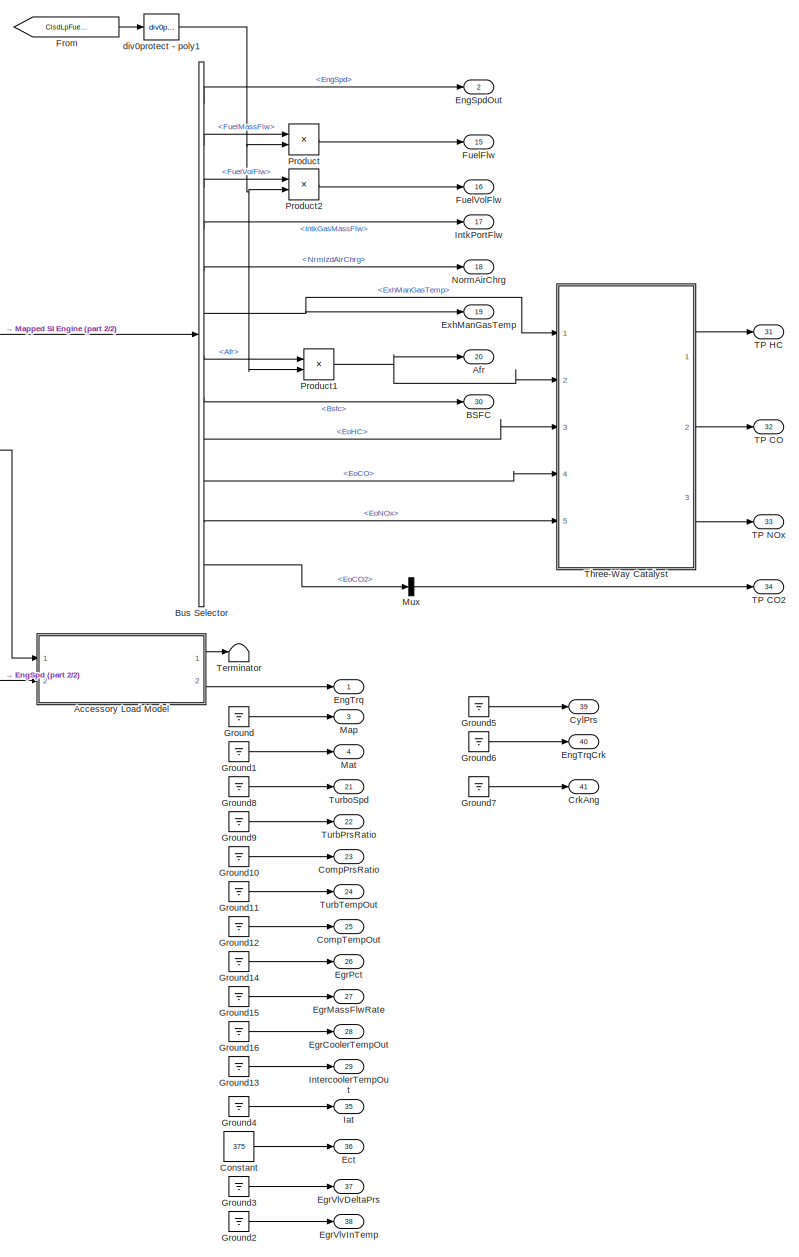
[diagram: root canvas - part 1/2, right side, full height]
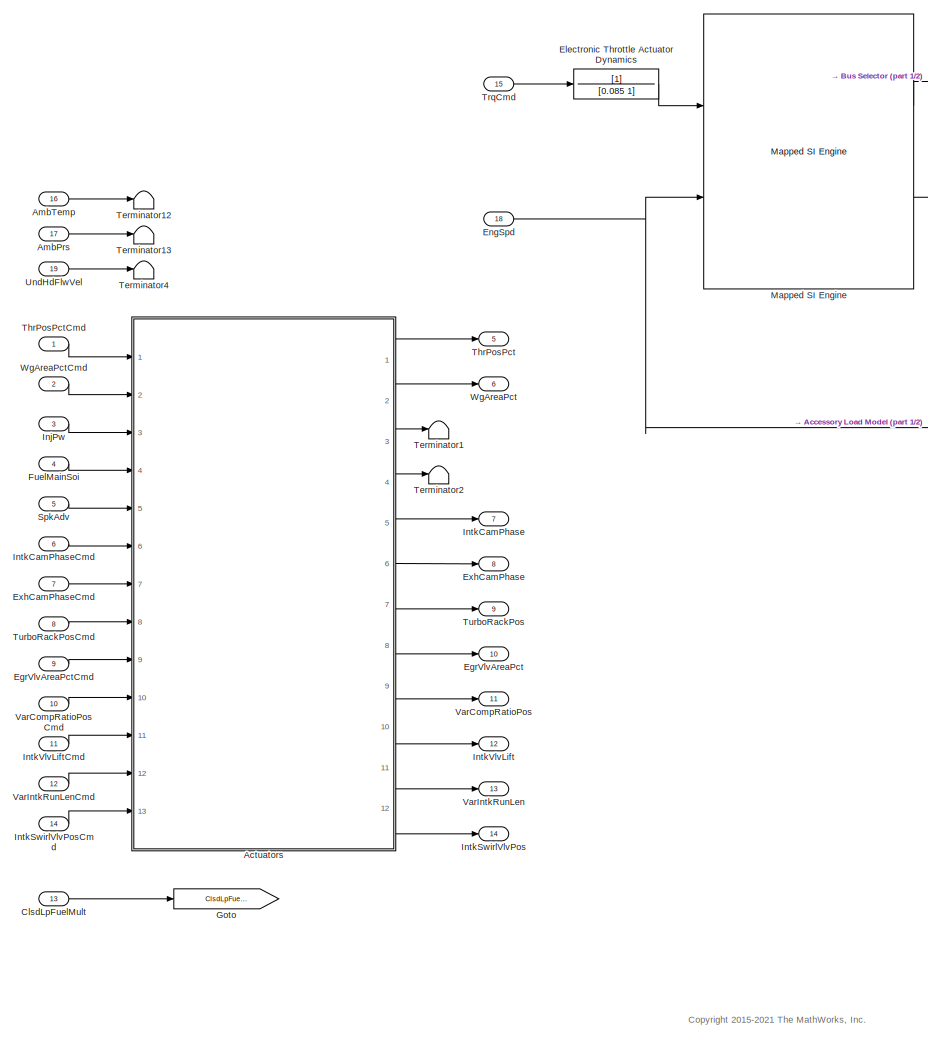
[diagram: root canvas - part 2/2, left side, full height]
MODEL slx_b3dbad4798a2
KIND model
CONFIG AbsTol = auto
CONFIG EnableMultiTasking = on
CONFIG MaxStep = auto
CONFIG MinStep = auto
CONFIG RelTol = 1e-3
CONFIG SampleTimeConstraint = Unconstrained
CONFIG SolverName = VariableStepAuto
CONFIG StartTime = 0.0
CONFIG StopTime = inf
WORKSPACE source: mxarray member
WORKSPACE AccPwrbp = [0 0]
WORKSPACE AccSpdbp = [300 750]
WORKSPACE AfrStoich = 14.6
WORKSPACE Cps = 2
WORKSPACE NCyl = 6
WORKSPACE Pstd = 101325
WORKSPACE Rair = 287
WORKSPACE TimeCnstECP = 0.125
WORKSPACE TimeCnstEGR = 0.125
WORKSPACE TimeCnstETC = 0.085
WORKSPACE TimeCnstICP = 0.125
WORKSPACE TimeCnstIVL = 0.125
WORKSPACE TimeCnstMFA = 0.125
WORKSPACE TimeCnstSWVA = 0.125
WORKSPACE TimeCnstVCR = 0.125
WORKSPACE TimeCnstVGT = 0.15
WORKSPACE TimeCnstVIRL = 0.125
WORKSPACE TimeCnstWGA = 0.15
WORKSPACE Tstd = 293.15
WORKSPACE Vd = 0.0015
WORKSPACE f_air = [0 0 0 0 0 0 0 0 0 0 0 0 ... (256 elements, 16x16)]
WORKSPACE f_air_3d = [0 0 0 0 0 0 0 0 0 0 0 0 ... (768 elements, 16x16x3)]
WORKSPACE f_co = [0 0 0 0 0 0 0 0 0 0 0 0 ... (256 elements, 16x16)]
WORKSPACE f_co2 = [0 0 0 0 0 0 0 0 0 0 0 0 ... (256 elements, 16x16)]
WORKSPACE f_co2_3d = [0 0 0 0 0 0 0 0 0 0 0 0 ... (768 elements, 16x16x3)]
WORKSPACE f_co_3d = [0 0 0 0 0 0 0 0 0 0 0 0 ... (768 elements, 16x16x3)]
WORKSPACE f_eff = [0 500 500 500 500 500 500 500 500 500 500 500 ... (256 elements, 16x16)]
WORKSPACE f_eff_3d = [0 525 525 525 525 525 525 525 525 525 525 525 ... (768 elements, 16x16x3)]
WORKSPACE f_fuel = [0 0 0 0 0 0 0 0 0 0 0 0 ... (256 elements, 16x16)]
WORKSPACE f_fuel_3d = [0 0 0 0 0 0 0 0 0 0 0 0 ... (768 elements, 16x16x3)]
WORKSPACE f_hc = [0 0 0 0 0 0 0 0 0 0 0 0 ... (256 elements, 16x16)]
WORKSPACE f_hc_3d = [0 0 0 0 0 0 0 0 0 0 0 0 ... (768 elements, 16x16x3)]
WORKSPACE f_nox = [0 0 0 0 0 0 0 0 0 0 0 0 ... (256 elements, 16x16)]
WORKSPACE f_nox_3d = [0 0 0 0 0 0 0 0 0 0 0 0 ... (768 elements, 16x16x3)]
WORKSPACE f_pm = [0 0 0 0 0 0 0 0 0 0 0 0 ... (256 elements, 16x16)]
WORKSPACE f_pm_3d = [0 0 0 0 0 0 0 0 0 0 0 0 ... (768 elements, 16x16x3)]
WORKSPACE f_tbrake = [0 15 15 15 15 15 15 15 15 15 15 15 ... (256 elements, 16x16)]
WORKSPACE f_tbrake_3d = [0 14.25 14.25 14.25 14.25 14.25 14.25 14.25 14.25 14.25 14.25 14.25 ... (768 elements, 16x16x3)]
WORKSPACE f_tbrake_engtmp_bpt = [233.15 273.15 373.15]
WORKSPACE f_tbrake_n_bpt = [0 750 1053.57142857 1357.14285714 1660.71428571 1964.28571429 2267.85714286 2571.42857143 2875 3178.57142857 3482.14285714 3785.71428571 ... (16 elements, 1x16)]
WORKSPACE f_tbrake_t_bpt = [0 15 26.4285714286 37.8571428571 49.2857142857 60.7142857143 72.1428571429 83.5714285714 95 106.428571429 117.857142857 129.285714286 ... (16 elements, 1x16)]
WORKSPACE f_texh = [730.342454347 730.70312412 730.70312412 730.70312412 730.70312412 730.70312412 730.70312412 730.70312412 730.70312412 730.70312412 730.70312412 730.70312412 ... (256 elements, 16x16)]
WORKSPACE f_texh_3d = [693.825331629 694.167967914 694.167967914 694.167967914 694.167967914 694.167967914 694.167967914 694.167967914 694.167967914 694.167967914 694.167967914 694.167967914 ... (768 elements, 16x16x3)]
WORKSPACE f_twc_eff_co = [0.17 0.25 0.45 0.99 0.99 0.99 0.99]
WORKSPACE f_twc_eff_hc = [0.21 0.375 0.75 0.98 0.98 0.98 0.98]
WORKSPACE f_twc_eff_lam = [0.909090909 0.944055944 0.979020979 1 1.013986014 1.048951049 1.083916084]
WORKSPACE f_twc_eff_nox = [0.98 0.98 0.98 0.97 0.05 0.02 0]
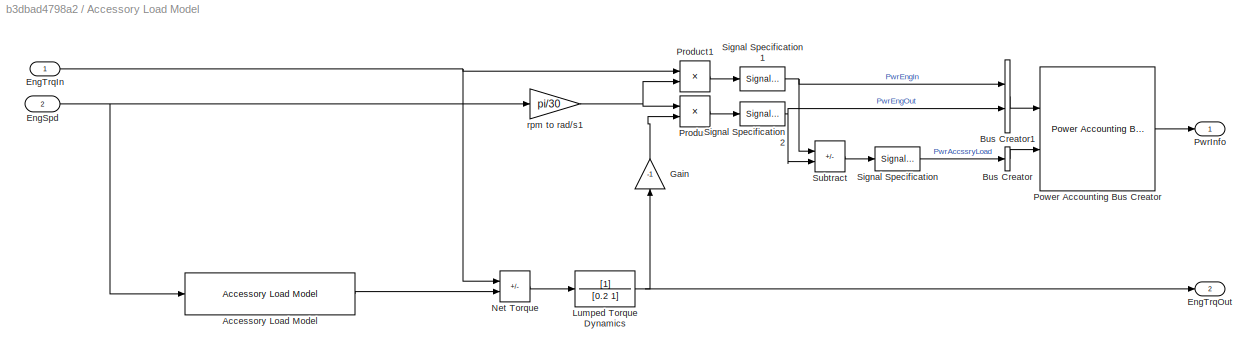
BLOCK [SubSystem] Accessory Load Model
  Ports = [2, 2]
  RequestExecContextInheritance = off
BLOCK [Reference] Accessory Load Model/Accessory Load Model  REF=autolibhevctrlrcommon/Accessory Load Model
  Ports = [1, 1]
  SourceBlock = autolibhevctrlrcommon/Accessory Load Model
  SourceProductBaseCode = PW
BLOCK [BusCreator] Accessory Load Model/Bus Creator
  DisplayOption = bar
  InheritFromInputs = on
  Inputs = 1
  Ports = [1, 1]
BLOCK [BusCreator] Accessory Load Model/Bus Creator1
  DisplayOption = bar
  InheritFromInputs = on
  Inputs = 2
  Ports = [2, 1]
BLOCK [Inport] Accessory Load Model/EngSpd
  Port = 2
BLOCK [Inport] Accessory Load Model/EngTrqIn
BLOCK [Outport] Accessory Load Model/EngTrqOut
  Port = 2
  Unit = N*m
  VectorParamsAs1DForOutWhenUnconnected = off
BLOCK [Gain] Accessory Load Model/Gain
  Gain = -1
  NameLocation = right
BLOCK [TransferFcn] Accessory Load Model/Lumped Torque Dynamics
  Denominator = [0.2 1]
BLOCK [Sum] Accessory Load Model/Net Torque
  IconShape = rectangular
  Inputs = +-
  Ports = [2, 1]
BLOCK [Reference] Accessory Load Model/Power Accounting Bus Creator  REF=autolibpowerinfoutils/Power Accounting Bus Creator
  Ports = [2, 1]
  SourceBlock = autolibpowerinfoutils/Power Accounting Bus Creator
  SourceProductBaseCode = PW,DR,MT,UV,VE
  SourceType = Power Accounting Bus Creator
BLOCK [Product] Accessory Load Model/Product
  Ports = [2, 1]
BLOCK [Product] Accessory Load Model/Product1
  Ports = [2, 1]
BLOCK [Outport] Accessory Load Model/PwrInfo
  VectorParamsAs1DForOutWhenUnconnected = off
BLOCK [SignalSpecification] Accessory Load Model/Signal Specification
  Unit = W
BLOCK [SignalSpecification] Accessory Load Model/Signal Specification1
  Unit = W
BLOCK [SignalSpecification] Accessory Load Model/Signal Specification2
  Unit = W
BLOCK [Sum] Accessory Load Model/Subtract
  IconShape = rectangular
  Inputs = --
  Ports = [2, 1]
BLOCK [Gain] Accessory Load Model/rpm to rad//s1
  Gain = pi/30
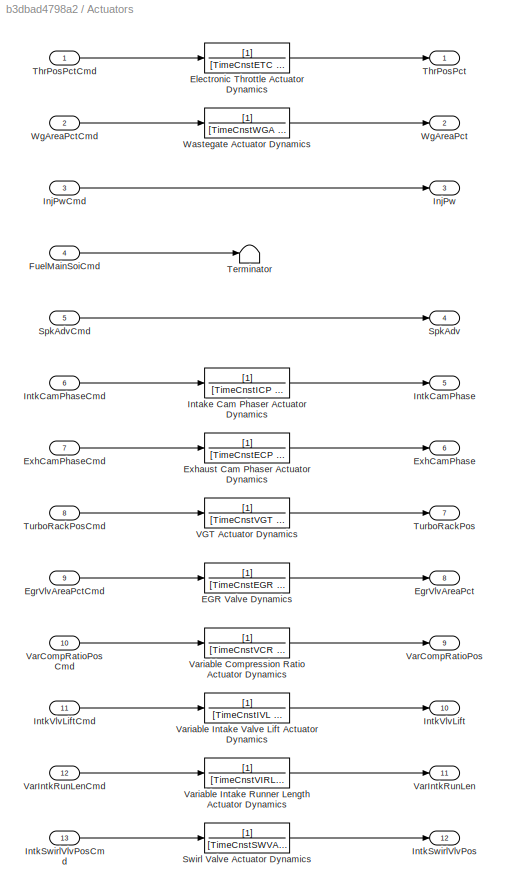
BLOCK [SubSystem] Actuators
  Ports = [13, 12]
  RequestExecContextInheritance = off
BLOCK [TransferFcn] Actuators/EGR Valve Dynamics
  Denominator = [TimeCnstEGR 1]
BLOCK [Outport] Actuators/EgrVlvAreaPct
  Port = 8
  Unit = %
  VectorParamsAs1DForOutWhenUnconnected = off
BLOCK [Inport] Actuators/EgrVlvAreaPctCmd
  Port = 9
  Unit = %
BLOCK [TransferFcn] Actuators/Electronic Throttle Actuator Dynamics
  Denominator = [TimeCnstETC 1]
BLOCK [Outport] Actuators/ExhCamPhase
  Port = 6
  Unit = deg
  VectorParamsAs1DForOutWhenUnconnected = off
BLOCK [Inport] Actuators/ExhCamPhaseCmd
  Port = 7
  Unit = deg
BLOCK [TransferFcn] Actuators/Exhaust Cam Phaser Actuator Dynamics
  Denominator = [TimeCnstECP 1]
BLOCK [Inport] Actuators/FuelMainSoiCmd
  Port = 4
  Unit = deg
BLOCK [Outport] Actuators/InjPw
  Port = 3
  VectorParamsAs1DForOutWhenUnconnected = off
BLOCK [Inport] Actuators/InjPwCmd
  Port = 3
  Unit = ms
BLOCK [TransferFcn] Actuators/Intake Cam Phaser Actuator Dynamics
  Denominator = [TimeCnstICP 1]
BLOCK [Outport] Actuators/IntkCamPhase
  Port = 5
  Unit = deg
  VectorParamsAs1DForOutWhenUnconnected = off
BLOCK [Inport] Actuators/IntkCamPhaseCmd
  Port = 6
  Unit = deg
BLOCK [Outport] Actuators/IntkSwirlVlvPos
  Port = 12
  VectorParamsAs1DForOutWhenUnconnected = off
BLOCK [Inport] Actuators/IntkSwirlVlvPosCmd
  Port = 13
BLOCK [Outport] Actuators/IntkVlvLift
  Port = 10
  VectorParamsAs1DForOutWhenUnconnected = off
BLOCK [Inport] Actuators/IntkVlvLiftCmd
  Port = 11
BLOCK [Outport] Actuators/SpkAdv
  Port = 4
  VectorParamsAs1DForOutWhenUnconnected = off
BLOCK [Inport] Actuators/SpkAdvCmd
  Port = 5
  Unit = deg
BLOCK [TransferFcn] Actuators/Swirl Valve Actuator Dynamics
  Denominator = [TimeCnstSWVA 1]
BLOCK [Terminator] Actuators/Terminator
BLOCK [Outport] Actuators/ThrPosPct
  Unit = %
  VectorParamsAs1DForOutWhenUnconnected = off
BLOCK [Inport] Actuators/ThrPosPctCmd
  Unit = %
  VarSizeSig = No
BLOCK [Outport] Actuators/TurboRackPos
  Port = 7
  Unit = 1
  VectorParamsAs1DForOutWhenUnconnected = off
BLOCK [Inport] Actuators/TurboRackPosCmd
  Port = 8
  Unit = 1
BLOCK [TransferFcn] Actuators/VGT Actuator Dynamics
  Denominator = [TimeCnstVGT 1]
BLOCK [Outport] Actuators/VarCompRatioPos
  Port = 9
  VectorParamsAs1DForOutWhenUnconnected = off
BLOCK [Inport] Actuators/VarCompRatioPosCmd
  Port = 10
BLOCK [Outport] Actuators/VarIntkRunLen
  Port = 11
  VectorParamsAs1DForOutWhenUnconnected = off
BLOCK [Inport] Actuators/VarIntkRunLenCmd
  Port = 12
BLOCK [TransferFcn] Actuators/Variable Compression Ratio Actuator Dynamics
  Denominator = [TimeCnstVCR 1]
BLOCK [TransferFcn] Actuators/Variable Intake Runner Length Actuator Dynamics
  Denominator = [TimeCnstVIRL 1]
BLOCK [TransferFcn] Actuators/Variable Intake Valve Lift Actuator Dynamics
  Denominator = [TimeCnstIVL 1]
BLOCK [TransferFcn] Actuators/Wastegate Actuator Dynamics
  Denominator = [TimeCnstWGA 1]
BLOCK [Outport] Actuators/WgAreaPct
  Port = 2
  Unit = %
  VectorParamsAs1DForOutWhenUnconnected = off
BLOCK [Inport] Actuators/WgAreaPctCmd
  Port = 2
  Unit = %
BLOCK [Outport] Afr
  Port = 20
  Unit = 1
  VectorParamsAs1DForOutWhenUnconnected = off
BLOCK [Inport] AmbPrs
  Port = 17
  Unit = Pa
BLOCK [Inport] AmbTemp
  Port = 16
  Unit = K
BLOCK [Outport] BSFC
  Port = 30
  VectorParamsAs1DForOutWhenUnconnected = off
BLOCK [BusSelector] Bus Selector
  OutputSignals = EngSpd,FuelMassFlw,FuelVolFlw,IntkGasMassFlw,NrmlzdAirChrg,ExhManGasTemp,Afr,Bsfc,EoHC,EoCO,EoNOx,EoCO2
  Ports = [1, 12]
BLOCK [Inport] ClsdLpFuelMult
  Port = 13
  Unit = 1
BLOCK [Outport] CompPrsRatio
  Port = 23
  Unit = 1
  VectorParamsAs1DForOutWhenUnconnected = off
BLOCK [Outport] CompTempOut
  Port = 25
  Unit = K
  VectorParamsAs1DForOutWhenUnconnected = off
BLOCK [Constant] Constant
  Value = 375
BLOCK [Outport] CrkAng
  Port = 41
  VectorParamsAs1DForOutWhenUnconnected = off
BLOCK [Outport] CylPrs
  Port = 39
  VectorParamsAs1DForOutWhenUnconnected = off
BLOCK [Outport] Ect
  Port = 36
  Unit = K
  VectorParamsAs1DForOutWhenUnconnected = off
BLOCK [Outport] EgrCoolerTempOut
  Port = 28
  Unit = K
  VectorParamsAs1DForOutWhenUnconnected = off
BLOCK [Outport] EgrMassFlwRate
  Port = 27
  Unit = kg/s
  VectorParamsAs1DForOutWhenUnconnected = off
BLOCK [Outport] EgrPct
  Port = 26
  Unit = %
  VectorParamsAs1DForOutWhenUnconnected = off
BLOCK [Outport] EgrVlvAreaPct
  Port = 10
  VectorParamsAs1DForOutWhenUnconnected = off
BLOCK [Inport] EgrVlvAreaPctCmd
  Port = 9
BLOCK [Outport] EgrVlvDeltaPrs
  Port = 37
  Unit = Pa
  VectorParamsAs1DForOutWhenUnconnected = off
BLOCK [Outport] EgrVlvInTemp
  Port = 38
  Unit = K
  VectorParamsAs1DForOutWhenUnconnected = off
BLOCK [TransferFcn] Electronic Throttle Actuator Dynamics
  Denominator = [0.085 1]
BLOCK [Inport] EngSpd
  Interpolate = off
  Port = 18
BLOCK [Outport] EngSpdOut
  Port = 2
  VectorParamsAs1DForOutWhenUnconnected = off
BLOCK [Outport] EngTrq
  Unit = N*m
  VectorParamsAs1DForOutWhenUnconnected = off
BLOCK [Outport] EngTrqCrk
  Port = 40
  VectorParamsAs1DForOutWhenUnconnected = off
BLOCK [Outport] ExhCamPhase
  Port = 8
  VectorParamsAs1DForOutWhenUnconnected = off
BLOCK [Inport] ExhCamPhaseCmd
  Port = 7
BLOCK [Outport] ExhManGasTemp
  Port = 19
  VectorParamsAs1DForOutWhenUnconnected = off
BLOCK [From] From
  GotoTag = ClsdLpFuelMult
BLOCK [Outport] FuelFlw
  Port = 15
  Unit = kg/s
  VectorParamsAs1DForOutWhenUnconnected = off
BLOCK [Inport] FuelMainSoi
  Port = 4
BLOCK [Outport] FuelVolFlw
  Port = 16
  Unit = m^3/s
  VectorParamsAs1DForOutWhenUnconnected = off
BLOCK [Goto] Goto
  GotoTag = ClsdLpFuelMult
BLOCK [Ground] Ground
BLOCK [Ground] Ground1
BLOCK [Ground] Ground10
BLOCK [Ground] Ground11
BLOCK [Ground] Ground12
BLOCK [Ground] Ground13
BLOCK [Ground] Ground14
BLOCK [Ground] Ground15
BLOCK [Ground] Ground16
BLOCK [Ground] Ground2
BLOCK [Ground] Ground3
BLOCK [Ground] Ground4
BLOCK [Ground] Ground5
BLOCK [Ground] Ground6
BLOCK [Ground] Ground7
BLOCK [Ground] Ground8
BLOCK [Ground] Ground9
BLOCK [Outport] Iat
  Port = 35
  Unit = K
  VectorParamsAs1DForOutWhenUnconnected = off
BLOCK [Inport] InjPw
  Port = 3
BLOCK [Outport] IntercoolerTempOut
  Port = 29
  Unit = K
  VectorParamsAs1DForOutWhenUnconnected = off
BLOCK [Outport] IntkCamPhase
  Port = 7
  VectorParamsAs1DForOutWhenUnconnected = off
BLOCK [Inport] IntkCamPhaseCmd
  Port = 6
BLOCK [Outport] IntkPortFlw
  Port = 17
  VectorParamsAs1DForOutWhenUnconnected = off
BLOCK [Outport] IntkSwirlVlvPos
  Port = 14
  VectorParamsAs1DForOutWhenUnconnected = off
BLOCK [Inport] IntkSwirlVlvPosCmd
  Port = 14
BLOCK [Outport] IntkVlvLift
  Port = 12
  VectorParamsAs1DForOutWhenUnconnected = off
BLOCK [Inport] IntkVlvLiftCmd
  Port = 11
BLOCK [Outport] Map
  Port = 3
  Unit = Pa
  VectorParamsAs1DForOutWhenUnconnected = off
BLOCK [Reference] Mapped SI Engine  REF=autolibsharedmappedengines/Mapped SI Engine
  Ports = [2, 2]
  SourceBlock = autolibsharedmappedengines/Mapped SI Engine
  SourceProductBaseCode = PW,DR,MT,UV,VE
  SourceType = Mapped SI Engine
BLOCK [Outport] Mat
  Port = 4
  Unit = K
  VectorParamsAs1DForOutWhenUnconnected = off
BLOCK [Mux] Mux
  DisplayOption = bar
  Inputs = 1
  Ports = [1, 1]
BLOCK [Outport] NormAirChrg
  Port = 18
  VectorParamsAs1DForOutWhenUnconnected = off
BLOCK [Product] Product
  Ports = [2, 1]
BLOCK [Product] Product1
  Inputs = */
  Ports = [2, 1]
BLOCK [Product] Product2
  Ports = [2, 1]
BLOCK [Inport] SpkAdv
  Port = 5
BLOCK [Outport] TP CO
  Port = 32
  VectorParamsAs1DForOutWhenUnconnected = off
BLOCK [Outport] TP CO2
  Port = 34
  VectorParamsAs1DForOutWhenUnconnected = off
BLOCK [Outport] TP HC
  Port = 31
  VectorParamsAs1DForOutWhenUnconnected = off
BLOCK [Outport] TP NOx
  Port = 33
  VectorParamsAs1DForOutWhenUnconnected = off
BLOCK [Terminator] Terminator
BLOCK [Terminator] Terminator1
BLOCK [Terminator] Terminator12
BLOCK [Terminator] Terminator13
BLOCK [Terminator] Terminator2
BLOCK [Terminator] Terminator4
BLOCK [Outport] ThrPosPct
  Port = 5
  VectorParamsAs1DForOutWhenUnconnected = off
BLOCK [Inport] ThrPosPctCmd
  VarSizeSig = No
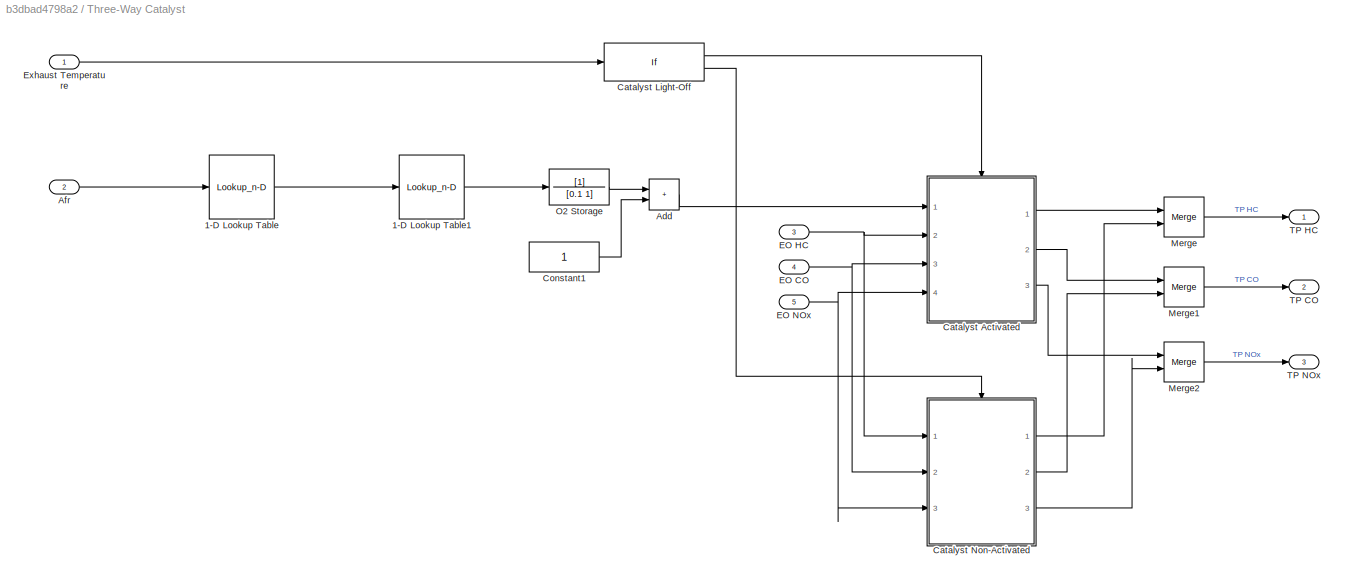
BLOCK [SubSystem] Three-Way Catalyst
  Ports = [5, 3]
  RequestExecContextInheritance = off
BLOCK [Lookup_n-D] Three-Way Catalyst/1-D Lookup Table
  BreakpointsForDimension1 = [0 15 100]
  ExtrapMethod = Clip
  InputPortMap = u0
  InternalRulePriority = Speed
  NumberOfTableDimensions = 1
  Ports = [1, 1]
  RndMeth = Simplest
  Table = [0 15 AfrStoich]/AfrStoich
BLOCK [Lookup_n-D] Three-Way Catalyst/1-D Lookup Table1
  BreakpointsForDimension1 = [0 0.97 1.03 1.1]
  ExtrapMethod = Clip
  InputPortMap = u0
  InternalRulePriority = Speed
  NumberOfTableDimensions = 1
  Ports = [1, 1]
  RndMeth = Simplest
  Table = [-1 0 0 0.07]
BLOCK [Sum] Three-Way Catalyst/Add
  IconShape = rectangular
  Ports = [2, 1]
BLOCK [Inport] Three-Way Catalyst/Afr
  Port = 2
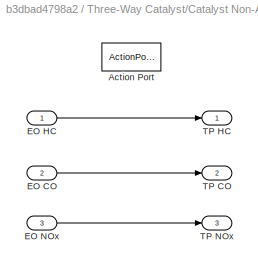
BLOCK [SubSystem] Three-Way Catalyst/Catalyst  Non-Activated
  Ports = [3, 3, 0, 0, 0, 0, 0, 1]
  RequestExecContextInheritance = off
BLOCK [ActionPort] Three-Way Catalyst/Catalyst  Non-Activated/Action Port
  ActionPortLabel = else
BLOCK [Inport] Three-Way Catalyst/Catalyst  Non-Activated/EO CO
  Port = 2
BLOCK [Inport] Three-Way Catalyst/Catalyst  Non-Activated/EO HC
BLOCK [Inport] Three-Way Catalyst/Catalyst  Non-Activated/EO NOx
  Port = 3
BLOCK [Outport] Three-Way Catalyst/Catalyst  Non-Activated/TP CO
  Port = 2
  VectorParamsAs1DForOutWhenUnconnected = off
BLOCK [Outport] Three-Way Catalyst/Catalyst  Non-Activated/TP HC
  VectorParamsAs1DForOutWhenUnconnected = off
BLOCK [Outport] Three-Way Catalyst/Catalyst  Non-Activated/TP NOx
  Port = 3
  VectorParamsAs1DForOutWhenUnconnected = off
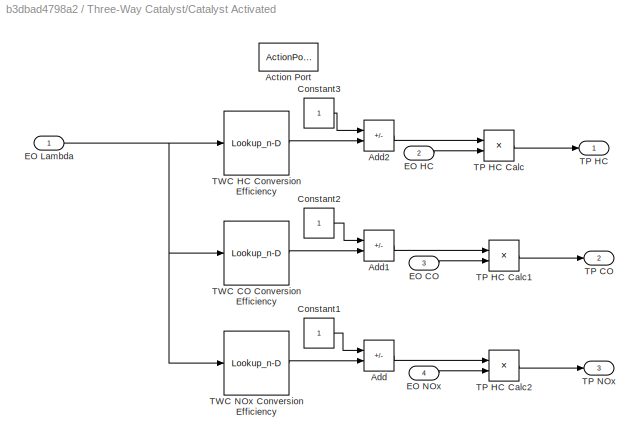
BLOCK [SubSystem] Three-Way Catalyst/Catalyst Activated
  Ports = [4, 3, 0, 0, 0, 0, 0, 1]
  RequestExecContextInheritance = off
BLOCK [ActionPort] Three-Way Catalyst/Catalyst Activated/Action Port
  ActionPortLabel = if(u1 > 573.15)
BLOCK [Sum] Three-Way Catalyst/Catalyst Activated/Add
  IconShape = rectangular
  Inputs = +-
  Ports = [2, 1]
BLOCK [Sum] Three-Way Catalyst/Catalyst Activated/Add1
  IconShape = rectangular
  Inputs = +-
  Ports = [2, 1]
BLOCK [Sum] Three-Way Catalyst/Catalyst Activated/Add2
  IconShape = rectangular
  Inputs = +-
  Ports = [2, 1]
BLOCK [Constant] Three-Way Catalyst/Catalyst Activated/Constant1
BLOCK [Constant] Three-Way Catalyst/Catalyst Activated/Constant2
BLOCK [Constant] Three-Way Catalyst/Catalyst Activated/Constant3
BLOCK [Inport] Three-Way Catalyst/Catalyst Activated/EO CO
  Port = 3
BLOCK [Inport] Three-Way Catalyst/Catalyst Activated/EO HC
  Port = 2
BLOCK [Inport] Three-Way Catalyst/Catalyst Activated/EO Lambda
BLOCK [Inport] Three-Way Catalyst/Catalyst Activated/EO NOx
  Port = 4
BLOCK [Outport] Three-Way Catalyst/Catalyst Activated/TP CO
  Port = 2
  VectorParamsAs1DForOutWhenUnconnected = off
BLOCK [Outport] Three-Way Catalyst/Catalyst Activated/TP HC
  VectorParamsAs1DForOutWhenUnconnected = off
BLOCK [Product] Three-Way Catalyst/Catalyst Activated/TP HC Calc
  Inputs = **
  Ports = [2, 1]
BLOCK [Product] Three-Way Catalyst/Catalyst Activated/TP HC Calc1
  Inputs = **
  Ports = [2, 1]
BLOCK [Product] Three-Way Catalyst/Catalyst Activated/TP HC Calc2
  Inputs = **
  Ports = [2, 1]
BLOCK [Outport] Three-Way Catalyst/Catalyst Activated/TP NOx
  Port = 3
  VectorParamsAs1DForOutWhenUnconnected = off
BLOCK [Lookup_n-D] Three-Way Catalyst/Catalyst Activated/TWC CO Conversion Efficiency
  BreakpointsForDimension1 = f_twc_eff_lam
  ExtrapMethod = Clip
  InputPortMap = u0
  InternalRulePriority = Speed
  LookupTableObject = ''
  NumberOfTableDimensions = 1
  Ports = [1, 1]
  RndMeth = Simplest
  Table = f_twc_eff_co
BLOCK [Lookup_n-D] Three-Way Catalyst/Catalyst Activated/TWC HC Conversion Efficiency
  BreakpointsForDimension1 = f_twc_eff_lam
  ExtrapMethod = Clip
  InputPortMap = u0
  InternalRulePriority = Speed
  LookupTableObject = ''
  NumberOfTableDimensions = 1
  Ports = [1, 1]
  RndMeth = Simplest
  Table = f_twc_eff_hc
BLOCK [Lookup_n-D] Three-Way Catalyst/Catalyst Activated/TWC NOx Conversion Efficiency
  BreakpointsForDimension1 = f_twc_eff_lam
  ExtrapMethod = Clip
  InputPortMap = u0
  InternalRulePriority = Speed
  LookupTableObject = ''
  NumberOfTableDimensions = 1
  Ports = [1, 1]
  RndMeth = Simplest
  Table = f_twc_eff_nox
BLOCK [If] Three-Way Catalyst/Catalyst Light-Off
  IfExpression = u1 > 573.15
  Ports = [1, 2]
BLOCK [Constant] Three-Way Catalyst/Constant1
BLOCK [Inport] Three-Way Catalyst/EO CO
  Port = 4
BLOCK [Inport] Three-Way Catalyst/EO HC
  Port = 3
BLOCK [Inport] Three-Way Catalyst/EO NOx
  Port = 5
BLOCK [Inport] Three-Way Catalyst/Exhaust Temperature
BLOCK [Merge] Three-Way Catalyst/Merge
  Ports = [2, 1]
BLOCK [Merge] Three-Way Catalyst/Merge1
  Ports = [2, 1]
BLOCK [Merge] Three-Way Catalyst/Merge2
  Ports = [2, 1]
BLOCK [TransferFcn] Three-Way Catalyst/O2 Storage
  Denominator = [0.1 1]
BLOCK [Outport] Three-Way Catalyst/TP CO
  Port = 2
  Unit = kg/s
  VectorParamsAs1DForOutWhenUnconnected = off
BLOCK [Outport] Three-Way Catalyst/TP HC
  Unit = kg/s
  VectorParamsAs1DForOutWhenUnconnected = off
BLOCK [Outport] Three-Way Catalyst/TP NOx
  Port = 3
  Unit = kg/s
  VectorParamsAs1DForOutWhenUnconnected = off
BLOCK [Inport] TrqCmd
  Port = 15
  Unit = N*m
BLOCK [Outport] TurbPrsRatio
  Port = 22
  Unit = 1
  VectorParamsAs1DForOutWhenUnconnected = off
BLOCK [Outport] TurbTempOut
  Port = 24
  Unit = K
  VectorParamsAs1DForOutWhenUnconnected = off
BLOCK [Outport] TurboRackPos
  Port = 9
  VectorParamsAs1DForOutWhenUnconnected = off
BLOCK [Inport] TurboRackPosCmd
  Port = 8
BLOCK [Outport] TurboSpd
  Port = 21
  Unit = rad/s
  VectorParamsAs1DForOutWhenUnconnected = off
BLOCK [Inport] UndHdFlwVel
  Port = 19
  Unit = m/s
BLOCK [Outport] VarCompRatioPos
  Port = 11
  VectorParamsAs1DForOutWhenUnconnected = off
BLOCK [Inport] VarCompRatioPosCmd
  Port = 10
BLOCK [Outport] VarIntkRunLen
  Port = 13
  VectorParamsAs1DForOutWhenUnconnected = off
BLOCK [Inport] VarIntkRunLenCmd
  Port = 12
BLOCK [Outport] WgAreaPct
  Port = 6
  VectorParamsAs1DForOutWhenUnconnected = off
BLOCK [Inport] WgAreaPctCmd
  Port = 2
BLOCK [Reference] div0protect - poly1  REF=autolibutils/div0protect - poly
  Ports = [1, 1]
  SourceBlock = autolibutils/div0protect - poly
  SourceProductBaseCode = PW,DR,MT,UV,VE
ANNOTATION (root): <copyright redacted>
LINE Accessory Load Model/Accessory Load Model:1 -> Accessory Load Model/Net Torque:2
LINE Accessory Load Model/Bus Creator1:1 -> Accessory Load Model/Power Accounting Bus Creator:1
LINE Accessory Load Model/Bus Creator:1 -> Accessory Load Model/Power Accounting Bus Creator:2
NET Accessory Load Model/EngSpd:1 -> Accessory Load Model/Accessory Load Model:1, Accessory Load Model/rpm to rad//s1:1
NET Accessory Load Model/EngTrqIn:1 -> Accessory Load Model/Net Torque:1, Accessory Load Model/Product1:1
LINE Accessory Load Model/Gain:1 -> Accessory Load Model/Product:2
NET Accessory Load Model/Lumped Torque Dynamics:1 -> Accessory Load Model/EngTrqOut:1, Accessory Load Model/Gain:1
LINE Accessory Load Model/Net Torque:1 -> Accessory Load Model/Lumped Torque Dynamics:1
LINE Accessory Load Model/Power Accounting Bus Creator:1 -> Accessory Load Model/PwrInfo:1
LINE Accessory Load Model/Product1:1 -> Accessory Load Model/Signal Specification1:1
LINE Accessory Load Model/Product:1 -> Accessory Load Model/Signal Specification2:1
NET Accessory Load Model/Signal Specification1:1 -> Accessory Load Model/Bus Creator1:1, Accessory Load Model/Subtract:1
NET Accessory Load Model/Signal Specification2:1 -> Accessory Load Model/Bus Creator1:2, Accessory Load Model/Subtract:2
LINE Accessory Load Model/Signal Specification:1 -> Accessory Load Model/Bus Creator:1
LINE Accessory Load Model/Subtract:1 -> Accessory Load Model/Signal Specification:1
NET Accessory Load Model/rpm to rad//s1:1 -> Accessory Load Model/Product1:2, Accessory Load Model/Product:1
LINE Accessory Load Model:1 -> Terminator:1
LINE Accessory Load Model:2 -> EngTrq:1
LINE Actuators/EGR Valve Dynamics:1 -> Actuators/EgrVlvAreaPct:1
LINE Actuators/EgrVlvAreaPctCmd:1 -> Actuators/EGR Valve Dynamics:1
LINE Actuators/Electronic Throttle Actuator Dynamics:1 -> Actuators/ThrPosPct:1
LINE Actuators/ExhCamPhaseCmd:1 -> Actuators/Exhaust Cam Phaser Actuator Dynamics:1
LINE Actuators/Exhaust Cam Phaser Actuator Dynamics:1 -> Actuators/ExhCamPhase:1
LINE Actuators/FuelMainSoiCmd:1 -> Actuators/Terminator:1
LINE Actuators/InjPwCmd:1 -> Actuators/InjPw:1
LINE Actuators/Intake Cam Phaser Actuator Dynamics:1 -> Actuators/IntkCamPhase:1
LINE Actuators/IntkCamPhaseCmd:1 -> Actuators/Intake Cam Phaser Actuator Dynamics:1
LINE Actuators/IntkSwirlVlvPosCmd:1 -> Actuators/Swirl Valve Actuator Dynamics:1
LINE Actuators/IntkVlvLiftCmd:1 -> Actuators/Variable Intake Valve Lift Actuator Dynamics:1
LINE Actuators/SpkAdvCmd:1 -> Actuators/SpkAdv:1
LINE Actuators/Swirl Valve Actuator Dynamics:1 -> Actuators/IntkSwirlVlvPos:1
LINE Actuators/ThrPosPctCmd:1 -> Actuators/Electronic Throttle Actuator Dynamics:1
LINE Actuators/TurboRackPosCmd:1 -> Actuators/VGT Actuator Dynamics:1
LINE Actuators/VGT Actuator Dynamics:1 -> Actuators/TurboRackPos:1
LINE Actuators/VarCompRatioPosCmd:1 -> Actuators/Variable Compression Ratio Actuator Dynamics:1
LINE Actuators/VarIntkRunLenCmd:1 -> Actuators/Variable Intake Runner Length Actuator Dynamics:1
LINE Actuators/Variable Compression Ratio Actuator Dynamics:1 -> Actuators/VarCompRatioPos:1
LINE Actuators/Variable Intake Runner Length Actuator Dynamics:1 -> Actuators/VarIntkRunLen:1
LINE Actuators/Variable Intake Valve Lift Actuator Dynamics:1 -> Actuators/IntkVlvLift:1
LINE Actuators/Wastegate Actuator Dynamics:1 -> Actuators/WgAreaPct:1
LINE Actuators/WgAreaPctCmd:1 -> Actuators/Wastegate Actuator Dynamics:1
LINE Actuators:1 -> ThrPosPct:1
LINE Actuators:10 -> IntkVlvLift:1
LINE Actuators:11 -> VarIntkRunLen:1
LINE Actuators:12 -> IntkSwirlVlvPos:1
LINE Actuators:2 -> WgAreaPct:1
LINE Actuators:3 -> Terminator1:1
LINE Actuators:4 -> Terminator2:1
LINE Actuators:5 -> IntkCamPhase:1
LINE Actuators:6 -> ExhCamPhase:1
LINE Actuators:7 -> TurboRackPos:1
LINE Actuators:8 -> EgrVlvAreaPct:1
LINE Actuators:9 -> VarCompRatioPos:1
LINE AmbPrs:1 -> Terminator13:1
LINE AmbTemp:1 -> Terminator12:1
LINE Bus Selector:1 -> EngSpdOut:1
LINE Bus Selector:10 -> Three-Way Catalyst:4
LINE Bus Selector:11 -> Three-Way Catalyst:5
LINE Bus Selector:12 -> Mux:1
LINE Bus Selector:2 -> Product:1
LINE Bus Selector:3 -> Product2:1
LINE Bus Selector:4 -> IntkPortFlw:1
LINE Bus Selector:5 -> NormAirChrg:1
NET Bus Selector:6 -> ExhManGasTemp:1, Three-Way Catalyst:1
LINE Bus Selector:7 -> Product1:1
LINE Bus Selector:8 -> BSFC:1
LINE Bus Selector:9 -> Three-Way Catalyst:3
LINE ClsdLpFuelMult:1 -> Goto:1
LINE Constant:1 -> Ect:1
LINE EgrVlvAreaPctCmd:1 -> Actuators:9
LINE Electronic Throttle Actuator Dynamics:1 -> Mapped SI Engine:1
NET EngSpd:1 -> Accessory Load Model:2, Mapped SI Engine:2
LINE ExhCamPhaseCmd:1 -> Actuators:7
LINE From:1 -> div0protect - poly1:1
LINE FuelMainSoi:1 -> Actuators:4
LINE Ground10:1 -> CompPrsRatio:1
LINE Ground11:1 -> TurbTempOut:1
LINE Ground12:1 -> CompTempOut:1
LINE Ground13:1 -> IntercoolerTempOut:1
LINE Ground14:1 -> EgrPct:1
LINE Ground15:1 -> EgrMassFlwRate:1
LINE Ground16:1 -> EgrCoolerTempOut:1
LINE Ground1:1 -> Mat:1
LINE Ground2:1 -> EgrVlvInTemp:1
LINE Ground3:1 -> EgrVlvDeltaPrs:1
LINE Ground4:1 -> Iat:1
LINE Ground5:1 -> CylPrs:1
LINE Ground6:1 -> EngTrqCrk:1
LINE Ground7:1 -> CrkAng:1
LINE Ground8:1 -> TurboSpd:1
LINE Ground9:1 -> TurbPrsRatio:1
LINE Ground:1 -> Map:1
LINE InjPw:1 -> Actuators:3
LINE IntkCamPhaseCmd:1 -> Actuators:6
LINE IntkSwirlVlvPosCmd:1 -> Actuators:13
LINE IntkVlvLiftCmd:1 -> Actuators:11
LINE Mapped SI Engine:1 -> Bus Selector:1
LINE Mapped SI Engine:2 -> Accessory Load Model:1
LINE Mux:1 -> TP CO2:1
NET Product1:1 -> Afr:1, Three-Way Catalyst:2
LINE Product2:1 -> FuelVolFlw:1
LINE Product:1 -> FuelFlw:1
LINE SpkAdv:1 -> Actuators:5
LINE ThrPosPctCmd:1 -> Actuators:1
LINE Three-Way Catalyst/1-D Lookup Table1:1 -> Three-Way Catalyst/O2 Storage:1
LINE Three-Way Catalyst/1-D Lookup Table:1 -> Three-Way Catalyst/1-D Lookup Table1:1
LINE Three-Way Catalyst/Add:1 -> Three-Way Catalyst/Catalyst Activated:1
LINE Three-Way Catalyst/Afr:1 -> Three-Way Catalyst/1-D Lookup Table:1
LINE Three-Way Catalyst/Catalyst  Non-Activated/EO CO:1 -> Three-Way Catalyst/Catalyst  Non-Activated/TP CO:1
LINE Three-Way Catalyst/Catalyst  Non-Activated/EO HC:1 -> Three-Way Catalyst/Catalyst  Non-Activated/TP HC:1
LINE Three-Way Catalyst/Catalyst  Non-Activated/EO NOx:1 -> Three-Way Catalyst/Catalyst  Non-Activated/TP NOx:1
LINE Three-Way Catalyst/Catalyst  Non-Activated:1 -> Three-Way Catalyst/Merge:2
LINE Three-Way Catalyst/Catalyst  Non-Activated:2 -> Three-Way Catalyst/Merge1:2
LINE Three-Way Catalyst/Catalyst  Non-Activated:3 -> Three-Way Catalyst/Merge2:2
LINE Three-Way Catalyst/Catalyst Activated/Add1:1 -> Three-Way Catalyst/Catalyst Activated/TP HC Calc1:1
LINE Three-Way Catalyst/Catalyst Activated/Add2:1 -> Three-Way Catalyst/Catalyst Activated/TP HC Calc:1
LINE Three-Way Catalyst/Catalyst Activated/Add:1 -> Three-Way Catalyst/Catalyst Activated/TP HC Calc2:1
LINE Three-Way Catalyst/Catalyst Activated/Constant1:1 -> Three-Way Catalyst/Catalyst Activated/Add:1
LINE Three-Way Catalyst/Catalyst Activated/Constant2:1 -> Three-Way Catalyst/Catalyst Activated/Add1:1
LINE Three-Way Catalyst/Catalyst Activated/Constant3:1 -> Three-Way Catalyst/Catalyst Activated/Add2:1
LINE Three-Way Catalyst/Catalyst Activated/EO CO:1 -> Three-Way Catalyst/Catalyst Activated/TP HC Calc1:2
LINE Three-Way Catalyst/Catalyst Activated/EO HC:1 -> Three-Way Catalyst/Catalyst Activated/TP HC Calc:2
NET Three-Way Catalyst/Catalyst Activated/EO Lambda:1 -> Three-Way Catalyst/Catalyst Activated/TWC CO Conversion Efficiency:1, Three-Way Catalyst/Catalyst Activated/TWC HC Conversion Efficiency:1, Three-Way Catalyst/Catalyst Activated/TWC NOx Conversion Efficiency:1
LINE Three-Way Catalyst/Catalyst Activated/EO NOx:1 -> Three-Way Catalyst/Catalyst Activated/TP HC Calc2:2
LINE Three-Way Catalyst/Catalyst Activated/TP HC Calc1:1 -> Three-Way Catalyst/Catalyst Activated/TP CO:1
LINE Three-Way Catalyst/Catalyst Activated/TP HC Calc2:1 -> Three-Way Catalyst/Catalyst Activated/TP NOx:1
LINE Three-Way Catalyst/Catalyst Activated/TP HC Calc:1 -> Three-Way Catalyst/Catalyst Activated/TP HC:1
LINE Three-Way Catalyst/Catalyst Activated/TWC CO Conversion Efficiency:1 -> Three-Way Catalyst/Catalyst Activated/Add1:2
LINE Three-Way Catalyst/Catalyst Activated/TWC HC Conversion Efficiency:1 -> Three-Way Catalyst/Catalyst Activated/Add2:2
LINE Three-Way Catalyst/Catalyst Activated/TWC NOx Conversion Efficiency:1 -> Three-Way Catalyst/Catalyst Activated/Add:2
LINE Three-Way Catalyst/Catalyst Activated:1 -> Three-Way Catalyst/Merge:1
LINE Three-Way Catalyst/Catalyst Activated:2 -> Three-Way Catalyst/Merge1:1
LINE Three-Way Catalyst/Catalyst Activated:3 -> Three-Way Catalyst/Merge2:1
LINE Three-Way Catalyst/Catalyst Light-Off:1 -> Three-Way Catalyst/Catalyst Activated:ifaction
LINE Three-Way Catalyst/Catalyst Light-Off:2 -> Three-Way Catalyst/Catalyst  Non-Activated:ifaction
LINE Three-Way Catalyst/Constant1:1 -> Three-Way Catalyst/Add:2
NET Three-Way Catalyst/EO CO:1 -> Three-Way Catalyst/Catalyst  Non-Activated:2, Three-Way Catalyst/Catalyst Activated:3
NET Three-Way Catalyst/EO HC:1 -> Three-Way Catalyst/Catalyst  Non-Activated:1, Three-Way Catalyst/Catalyst Activated:2
NET Three-Way Catalyst/EO NOx:1 -> Three-Way Catalyst/Catalyst  Non-Activated:3, Three-Way Catalyst/Catalyst Activated:4
LINE Three-Way Catalyst/Exhaust Temperature:1 -> Three-Way Catalyst/Catalyst Light-Off:1
LINE Three-Way Catalyst/Merge1:1 -> Three-Way Catalyst/TP CO:1
LINE Three-Way Catalyst/Merge2:1 -> Three-Way Catalyst/TP NOx:1
LINE Three-Way Catalyst/Merge:1 -> Three-Way Catalyst/TP HC:1
LINE Three-Way Catalyst/O2 Storage:1 -> Three-Way Catalyst/Add:1
LINE Three-Way Catalyst:1 -> TP HC:1
LINE Three-Way Catalyst:2 -> TP CO:1
LINE Three-Way Catalyst:3 -> TP NOx:1
LINE TrqCmd:1 -> Electronic Throttle Actuator Dynamics:1
LINE TurboRackPosCmd:1 -> Actuators:8
LINE UndHdFlwVel:1 -> Terminator4:1
LINE VarCompRatioPosCmd:1 -> Actuators:10
LINE VarIntkRunLenCmd:1 -> Actuators:12
LINE WgAreaPctCmd:1 -> Actuators:2
NET div0protect - poly1:1 -> Product1:2, Product2:2, Product:2
note: NET lines group one-source signal fan-out (src -> all destinations, sorted); 1:1 wires keep LINE
